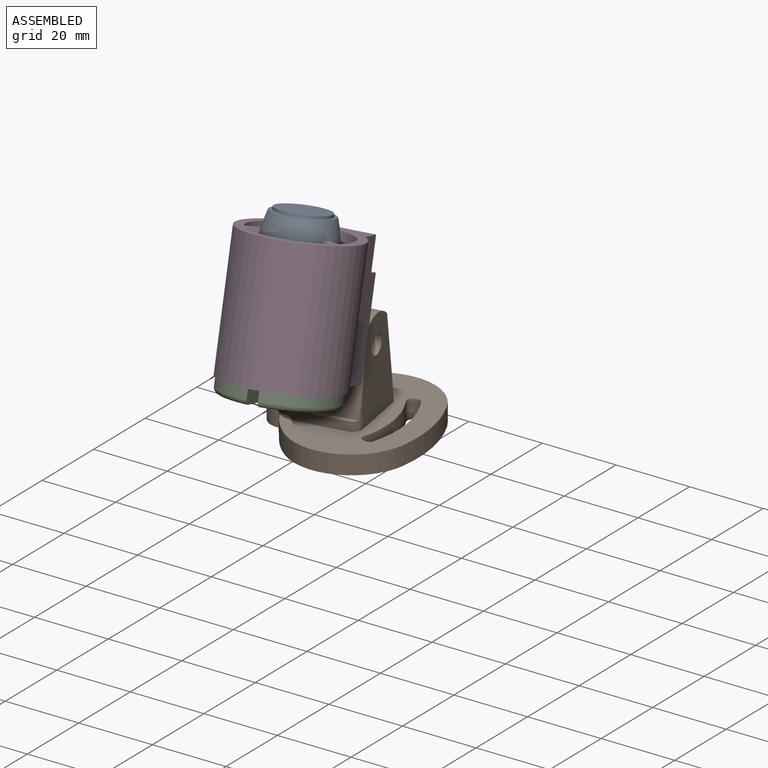
[diagram: assembled view]
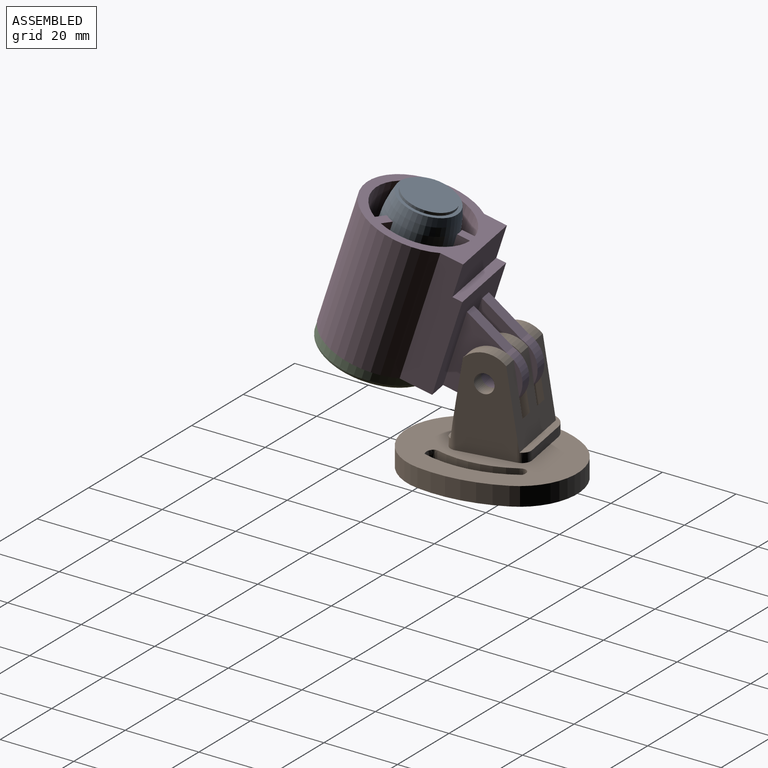
[diagram: assembled view, second angle]
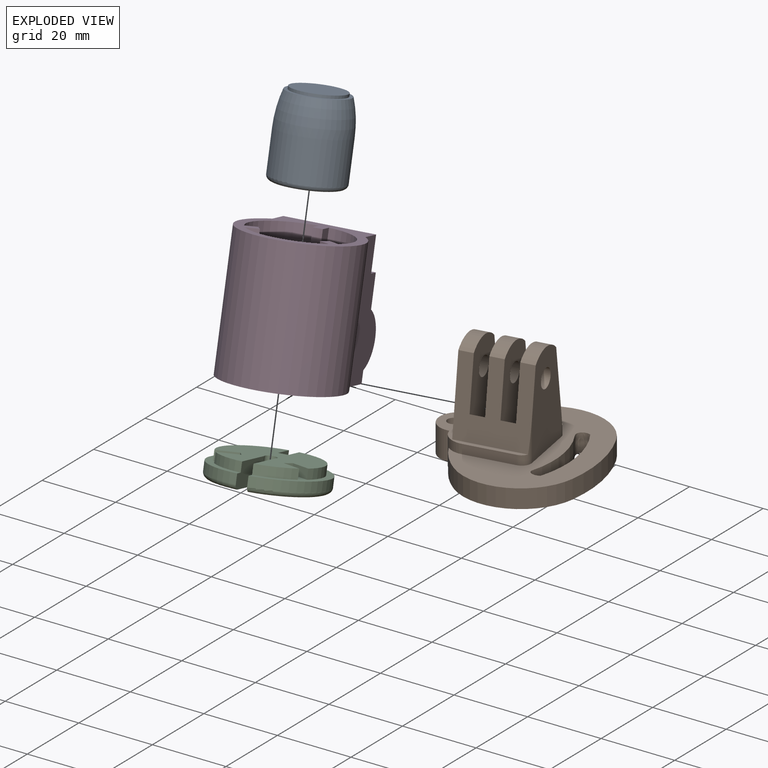
[diagram: exploded view]
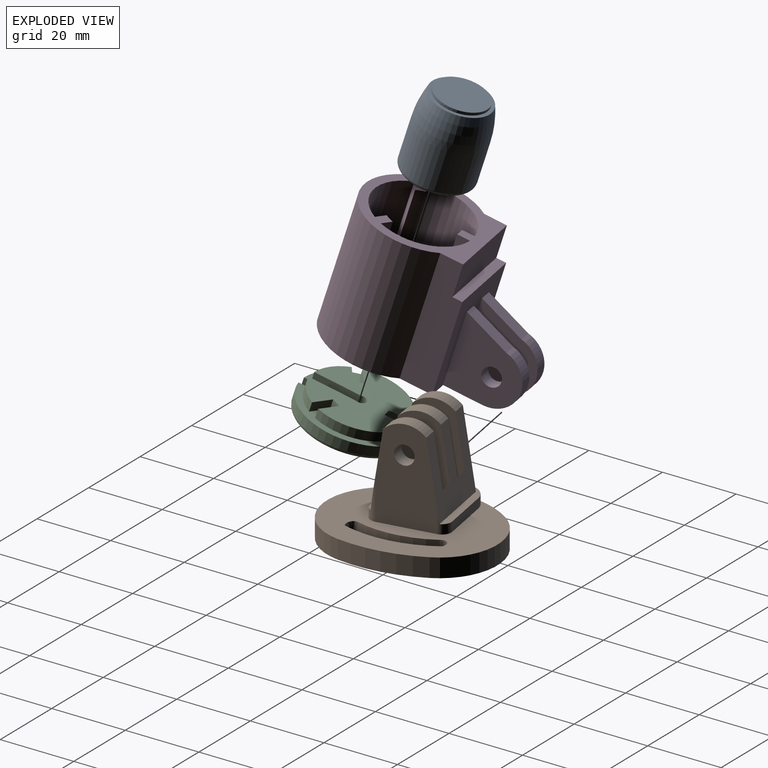
[diagram: exploded view, second angle]
ASSEMBLY  parts=4 mates=3
PART A: 7 faces, bbox 20.1x20.1x21.7 mm
  f0: plane 16x16mm, normal (0,0,-1), area 201.1mm2, adj f1
  f1: torus R=8mm, axis (0,0,-1), area 110.4mm2, adj f0,f2
  f2: cylinder r=9.27mm len=18.54mm, axis (0,0,-1), area 625.9mm2, adj f1,f3
  f3: revolved ~18.54x18.54mm, area 499.9mm2, adj f2,f4
  f4: plane 15.75x15.75mm, normal (0,0,1), area 43.7mm2, adj f3,f5
  f5: cylinder r=6.93mm len=13.87mm, axis (0,0,-1), area 33.2mm2, adj f4,f6
  f6: plane 13.87x13.87mm, normal (0,0,1), area 151.1mm2, adj f5
PART B: 43 faces, bbox 40.3x44.7x30.5 mm
  f0: plane 44.75x33.67mm, normal (0,0,1), area 747.9mm2, adj f2,f3,f5,f6,f16,f19,f32,f33
  f1: plane 44.75x40.27mm, normal (0,0,-1), area 1203.5mm2, adj f2,f3,f4,f16,f32,f35,f36,f37
  f2: cylinder r=5.52mm len=7.62mm, axis (0,0,-1), area 39.1mm2, adj f0,f1,f3,f4,f6,f7
  f3: cylinder r=25.4mm len=9.17mm, axis (0,0,-1), area 54.9mm2, adj f0,f1,f2,f36
  f4: cylinder r=5.08mm len=10.16mm, axis (0,0,-1), area 123.9mm2, adj f1,f2,f7,f32
  f5: plane 13.53x2.54mm, normal (0,1,0), area 34.4mm2, adj f0,f7,f32,f33
  f6: plane 13.53x2.54mm, normal (0,-1,0), area 34.4mm2, adj f0,f2,f7,f34
  f7: plane 26.74x20.32mm, normal (0,0,1), area 129.5mm2, adj f2,f4,f5,f6,f8,f9,f11,f32
  f8: plane 20.6x19.05mm, normal (0,0.99,0.15), area 288.4mm2, adj f7,f11,f12,f13,f14,f17,f18,f19
  f9: plane 20.6x19.05mm, normal (0,-0.99,0.15), area 287.4mm2, adj f7,f11,f17,f18,f19,f20,f21,f22
  f10: plane 15.1x3.81mm, normal (0,0,1), area 57.5mm2, adj f18,f21,f26,f28
  f11: plane 22.86x17.13mm, normal (-1,0,0), area 282.7mm2, adj f7,f8,f9,f14,f24,f31
  f12: cylinder r=7.62mm len=5.34mm, axis (1,0,0), area 22.7mm2, adj f8,f20,f21,f22
  f13: cylinder r=7.62mm len=5.34mm, axis (1,0,0), area 22.7mm2, adj f8,f18,f19,f23
  f14: cylinder r=7.62mm len=5.34mm, axis (1,0,0), area 22.7mm2, adj f8,f11,f17,f24
  f15: plane 15.1x3.81mm, normal (0,0,1), area 57.5mm2, adj f17,f20,f25,f27
  f16: cylinder r=25.4mm len=9.17mm, axis (0,0,-1), area 54.9mm2, adj f0,f1,f32,f37
  f17: plane 22.86x15.1mm, normal (1,0,0), area 276.1mm2, adj f8,f9,f14,f15,f24,f25,f27,f31
  f18: plane 22.86x15.1mm, normal (-1,0,0), area 276.1mm2, adj f8,f9,f10,f13,f23,f26,f28,f30
  f19: plane 25.4x15.24mm, normal (1,0,0), area 314.9mm2, adj f0,f8,f9,f13,f23,f30,f33,f34
  f20: plane 22.86x15.1mm, normal (-1,0,0), area 276.1mm2, adj f8,f9,f12,f15,f22,f25,f27,f29
  f21: plane 22.86x15.1mm, normal (1,0,0), area 276.1mm2, adj f8,f9,f10,f12,f22,f26,f28,f29
  f22: cylinder r=7.62mm len=5.34mm, axis (-1,0,0), area 22.7mm2, adj f9,f12,f20,f21
  f23: cylinder r=7.62mm len=5.34mm, axis (-1,0,0), area 22.7mm2, adj f9,f13,f18,f19
  f24: cylinder r=7.62mm len=5.34mm, axis (-1,0,0), area 22.7mm2, adj f9,f11,f14,f17
  f25: plane 6.5x3.81mm, normal (0,-1,0), area 24.8mm2, adj f8,f15,f17,f20
  f26: plane 6.5x3.81mm, normal (0,-1,0), area 24.8mm2, adj f8,f10,f18,f21
  f27: plane 6.5x3.81mm, normal (0,1,0), area 24.8mm2, adj f9,f15,f17,f20
  f28: plane 6.5x3.81mm, normal (0,1,0), area 24.8mm2, adj f9,f10,f18,f21
  f29: cylinder r=2.54mm len=5.08mm, axis (-1,0,0), area 60.8mm2, adj f20,f21
  f30: cylinder r=2.54mm len=5.08mm, axis (-1,0,0), area 60.8mm2, adj f18,f19
  f31: cylinder r=2.54mm len=5.08mm, axis (-1,0,0), area 60.8mm2, adj f11,f17
  f32: cylinder r=5.52mm len=7.62mm, axis (0,0,1), area 39.1mm2, adj f0,f1,f4,f5,f7,f16
  f33: cylinder r=2.54mm len=6.2mm, axis (0,0,-1), area 11.2mm2, adj f0,f5,f7,f8,f19
  f34: cylinder r=2.54mm len=10.95mm, axis (0,0,1), area 15.8mm2, adj f0,f6,f7,f9,f19
  f35: cylinder r=38.21mm len=22.68mm, axis (0,0,-1), area 117mm2, adj f0,f1,f36,f37
  f36: cylinder r=15.69mm len=26.37mm, axis (0,0,-1), area 165.9mm2, adj f0,f1,f3,f35
  f37: cylinder r=15.69mm len=26.37mm, axis (0,0,-1), area 165.9mm2, adj f0,f1,f16,f35
  f38: extruded ~5.08x3.01mm, area 24.6mm2, adj f0,f1,f39,f41
  f39: cylinder r=26.02mm len=20.64mm, axis (0,0,1), area 107.9mm2, adj f0,f1,f38,f40
  f40: extruded ~5.08x2.98mm, area 21.1mm2, adj f0,f1,f39,f41
  f41: cylinder r=29.43mm len=24.41mm, axis (0,0,1), area 127.9mm2, adj f0,f1,f38,f40
  f42: cylinder r=1.7mm len=7.62mm, axis (0,0,1), area 81.5mm2, adj f1,f7
PART C: 21 faces, bbox 31.6x6.4x31.5 mm
  f0: plane 25.4x25.26mm, normal (0,1,0), area 422.5mm2, adj f2,f3,f6,f7,f8,f9,f10,f11
  f1: cylinder r=14.6mm len=29.21mm, axis (0,1,0), area 225.9mm2, adj f2,f3,f5,f20
  f2: plane 13.93x6.35mm, normal (-1,0,0), area 83.2mm2, adj f0,f1,f4,f5,f6,f8,f20
  f3: plane 13.93x6.35mm, normal (1,0,0), area 83.2mm2, adj f0,f1,f4,f5,f6,f9,f20
  f4: plane 26.67x26.59mm, normal (0,-1,0), area 517.5mm2, adj f2,f3,f5,f6
  f5: torus R=13.33mm, axis (0,-1,0), area 171.7mm2, adj f1,f2,f3,f4
  f6: cylinder r=1.52mm len=6.35mm, axis (0,1,0), area 38.4mm2, adj f0,f2,f3,f4
  f7: plane 5.08x2.93mm, normal (0.5,0,-0.87), area 14.9mm2, adj f0,f8,f19,f20
  f8: cylinder r=12.7mm len=8.91mm, axis (0,1,0), area 27mm2, adj f0,f2,f7,f20
  f9: cylinder r=12.7mm len=8.91mm, axis (0,1,0), area 27mm2, adj f0,f3,f10,f20
  f10: plane 5.08x2.93mm, normal (-0.5,0,-0.87), area 14.9mm2, adj f0,f9,f11,f20
  f11: plane 2.54x2.2mm, normal (-0.87,0,0.5), area 6.5mm2, adj f0,f10,f12,f20
  f12: plane 5.08x2.93mm, normal (0.5,0,0.87), area 14.9mm2, adj f0,f11,f13,f20
  f13: cylinder r=12.7mm len=17.85mm, axis (0,1,0), area 61.1mm2, adj f0,f12,f14,f20
  f14: plane 5.86x2.54mm, normal (1,0,0), area 14.9mm2, adj f0,f13,f15,f20
  f15: plane 2.54x2.54mm, normal (0,0,-1), area 6.5mm2, adj f0,f14,f16,f20
  f16: plane 5.86x2.54mm, normal (-1,0,0), area 14.9mm2, adj f0,f15,f17,f20
  f17: cylinder r=12.7mm len=17.85mm, axis (0,1,0), area 61.1mm2, adj f0,f16,f18,f20
  f18: plane 5.08x2.93mm, normal (-0.5,0,0.87), area 14.9mm2, adj f0,f17,f19,f20
  f19: plane 2.54x2.2mm, normal (0.87,0,0.5), area 6.5mm2, adj f0,f7,f18,f20
  f20: plane 29.21x29.14mm, normal (0,1,0), area 202.9mm2, adj f1,f2,f3,f7,f8,f9,f10,f11
PART D: 48 faces, bbox 30.4x34.3x51.4 mm
  f0: plane 25.4x22.86mm, normal (0,0,-1), area 438mm2, adj f1,f2,f17,f18,f19,f20,f25,f27
  f1: plane 43.78x30.42mm, normal (0,-1,0), area 417.3mm2, adj f0,f17,f18,f19,f20,f21,f22,f25
  f2: plane 22.86x2.54mm, normal (0,1,0), area 58.1mm2, adj f0,f4,f25,f27
  f3: plane 31.08x30.42mm, normal (0,1,0), area 296.6mm2, adj f4,f5,f6,f7,f8,f9,f10,f11
  f4: plane 22.86x8.89mm, normal (0,0,-1), area 203.2mm2, adj f2,f3,f25,f27
  f5: plane 29.21x5.08mm, normal (0.5,0,-0.87), area 129.4mm2, adj f3,f6,f16,f32,f33,f41
  f6: cylinder r=12.7mm len=29.21mm, axis (0,1,0), area 702.6mm2, adj f3,f5,f7,f39
  f7: plane 29.21x5.86mm, normal (1,0,0), area 129.4mm2, adj f3,f6,f8,f30,f31,f37
  f8: cylinder r=9.4mm len=16.51mm, axis (0,1,0), area 42.1mm2, adj f3,f7,f9,f31
  f9: plane 29.21x5.86mm, normal (-1,0,0), area 129.4mm2, adj f3,f8,f10,f30,f31,f38
  f10: cylinder r=12.7mm len=29.21mm, axis (0,1,0), area 702.6mm2, adj f3,f9,f11,f40
  f11: plane 29.21x5.08mm, normal (-0.5,0,-0.87), area 129.4mm2, adj f3,f10,f12,f34,f35,f42
  f12: cylinder r=9.4mm len=16.51mm, axis (0,1,0), area 42.1mm2, adj f3,f11,f13,f35
  f13: plane 29.21x5.08mm, normal (0.5,0,0.87), area 129.4mm2, adj f3,f12,f14,f34,f35,f46
  f14: cylinder r=12.7mm len=29.21mm, axis (0,1,0), area 702.6mm2, adj f3,f13,f15,f47
  f15: plane 29.21x5.08mm, normal (-0.5,0,0.87), area 129.4mm2, adj f3,f14,f16,f32,f33,f45
  f16: cylinder r=9.4mm len=16.51mm, axis (0,1,0), area 42.1mm2, adj f3,f5,f15,f33
  f17: plane 20.06x17.78mm, normal (-1,0,0), area 253.1mm2, adj f0,f1,f22,f24,f29
  f18: plane 20.06x17.78mm, normal (1,0,0), area 253.1mm2, adj f0,f1,f22,f24,f29
  f19: plane 20.06x17.78mm, normal (-1,0,0), area 253.1mm2, adj f0,f1,f21,f23,f28
  f20: plane 20.06x17.78mm, normal (1,0,0), area 253.1mm2, adj f0,f1,f21,f23,f28
  f21: cylinder r=7.62mm len=15.09mm, axis (-1,0,0), area 79.7mm2, adj f1,f19,f20,f28
  f22: cylinder r=7.62mm len=15.09mm, axis (-1,0,0), area 79.7mm2, adj f1,f17,f18,f29
  f23: cylinder r=2.54mm len=5.08mm, axis (1,0,0), area 56.8mm2, adj f19,f20
  f24: cylinder r=2.54mm len=5.08mm, axis (1,0,0), area 56.8mm2, adj f17,f18
  f25: plane 34.29x8.38mm, normal (1,0,0), area 264.9mm2, adj f0,f1,f2,f3,f4,f26
  f26: cylinder r=15.21mm len=34.29mm, axis (0,1,0), area 2389.4mm2, adj f1,f3,f25,f27
  f27: plane 34.29x8.38mm, normal (-1,0,0), area 264.9mm2, adj f0,f1,f2,f3,f4,f26
  f28: plane 11.68x4.98mm, normal (0,0.92,-0.39), area 45.2mm2, adj f0,f19,f20,f21
  f29: plane 11.68x4.98mm, normal (0,0.92,-0.39), area 45.2mm2, adj f0,f17,f18,f22
  f30: plane 12.7x2.54mm, normal (0,0,1), area 32.3mm2, adj f7,f9,f31,f36
  f31: plane 2.63x2.54mm, normal (0,1,0), area 6.6mm2, adj f7,f8,f9,f30
  f32: plane 12.7x2.2mm, normal (-0.87,0,-0.5), area 32.3mm2, adj f5,f15,f33,f43
  f33: plane 3.47x3.47mm, normal (0,1,0), area 6.6mm2, adj f5,f15,f16,f32
  f34: plane 12.7x2.2mm, normal (0.87,0,-0.5), area 32.3mm2, adj f11,f13,f35,f44
  f35: plane 3.47x3.47mm, normal (0,1,0), area 6.6mm2, adj f11,f12,f13,f34
  f36: plane 5.08x2.54mm, normal (0,-0.05,1), area 11.6mm2, adj f1,f30,f37,f38
  f37: plane 6.15x5.08mm, normal (1,-0.05,0), area 29.9mm2, adj f1,f7,f36,f39
  f38: plane 6.15x5.08mm, normal (-1,-0.05,0), area 29.9mm2, adj f1,f9,f36,f40
  f39: cone r=12.7mm half-angle=2.9deg, axis (0,-1,0), area 125mm2, adj f1,f6,f37,f41
  f40: cone r=12.7mm half-angle=2.9deg, axis (0,-1,0), area 125mm2, adj f1,f10,f38,f42
  f41: plane 5.2x5.08mm, normal (0.5,-0.05,-0.86), area 29.9mm2, adj f1,f5,f39,f43
  f42: plane 5.2x5.08mm, normal (-0.5,-0.05,-0.86), area 29.9mm2, adj f1,f11,f40,f44
  f43: plane 5.08x2.2mm, normal (-0.86,-0.05,-0.5), area 11.6mm2, adj f1,f32,f41,f45
  f44: plane 5.08x2.2mm, normal (0.86,-0.05,-0.5), area 11.6mm2, adj f1,f34,f42,f46
  f45: plane 5.45x5.08mm, normal (-0.5,-0.05,0.86), area 29.9mm2, adj f1,f15,f43,f47
  f46: plane 5.45x5.08mm, normal (0.5,-0.05,0.86), area 29.9mm2, adj f1,f13,f44,f47
  f47: cone r=12.7mm half-angle=2.9deg, axis (0,-1,0), area 125mm2, adj f1,f14,f45,f46
PLACE A rot(axis=(-0.87,-0.07,0.49),19.6deg) t=(17.31,-22.19,40.94)mm
PLACE B rot(axis=(0,0,1),9.7deg) t=(26.28,4.49,0)mm
PLACE C rot(axis=(0.99,0.08,0.11),73.5deg) t=(34.37,-8.92,21.87)mm
PLACE D rot(axis=(0.99,0.08,0.11),73.5deg) t=(34.41,-9.15,19.29)mm
MATE fastened A.f1 <-> D.f6  axis (0.05,-0.29,-0.96) through (17.31,-22.19,40.94)mm
MATE revolute D.f21 <-> B.f12  axis (0.99,0.17,0) through (18.84,2.77,22.86)mm
MATE fastened C.f0 <-> D.f6  axis (-0.05,0.29,0.96) through (18.06,-26.59,26.37)mm
